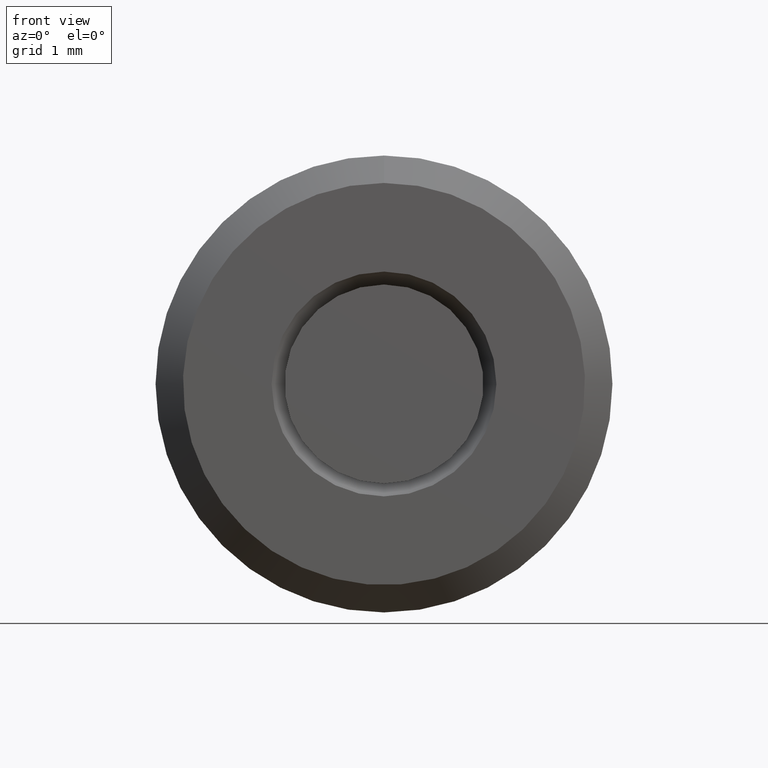
[diagram: clean part render]
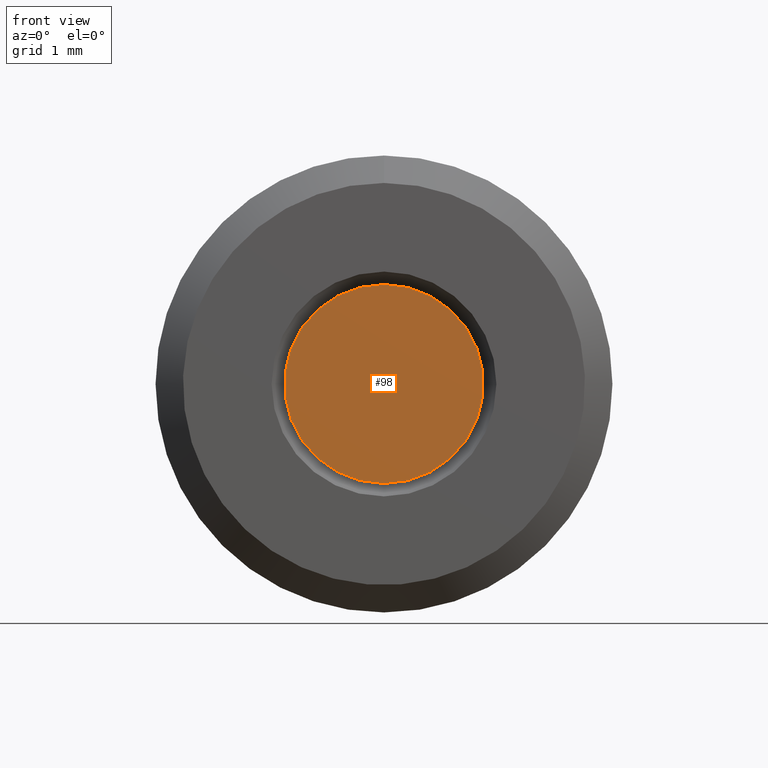
[diagram: same view with one face highlighted and labeled with its STEP entity id]
A machine part, front view. The second image highlights one B-rep face of the part: STEP entity #98.
In plain terms, the highlighted planar face has unit normal (0, -1, 0).
Its self-contained STEP definition (entity closure, byte-faithful):
#7 = DIRECTION ( 'NONE',  ( 0.0000000000000000000, 0.0000000000000000000, 1.000000000000000000 ) ) ;
#14 = EDGE_CURVE ( 'NONE', #547, #547, #408, .T. ) ;
#59 = EDGE_LOOP ( 'NONE', ( #337 ) ) ;
#98 = ADVANCED_FACE ( 'NONE', ( #301 ), #320, .T. ) ;
#171 = CARTESIAN_POINT ( 'NONE',  ( -0.05443749999999976400, -1.707404996040164500E-017, 0.0000000000000000000 ) ) ;
#213 = DIRECTION ( 'NONE',  ( -0.0000000000000000000, 1.000000000000000000, -0.0000000000000000000 ) ) ;
#234 = CARTESIAN_POINT ( 'NONE',  ( 0.0000000000000000000, -3.414809992080329000E-017, 0.0000000000000000000 ) ) ;
#271 = AXIS2_PLACEMENT_3D ( 'NONE', #171, #336, #468 ) ;
#301 = FACE_OUTER_BOUND ( 'NONE', #59, .T. ) ;
#314 = AXIS2_PLACEMENT_3D ( 'NONE', #234, #213, #7 ) ;
#320 = PLANE ( 'NONE',  #271 ) ;
#336 = DIRECTION ( 'NONE',  ( 0.0000000000000000000, -1.000000000000000000, 0.0000000000000000000 ) ) ;
#337 = ORIENTED_EDGE ( 'NONE', *, *, #14, .F. ) ;
#408 = CIRCLE ( 'NONE', #314, 0.05443749999999976400 ) ;
#468 = DIRECTION ( 'NONE',  ( 0.0000000000000000000, -0.0000000000000000000, -1.000000000000000000 ) ) ;
#499 = CARTESIAN_POINT ( 'NONE',  ( 0.0000000000000000000, -3.414809992080329000E-017, 0.05443749999999976400 ) ) ;
#547 = VERTEX_POINT ( 'NONE', #499 ) ;